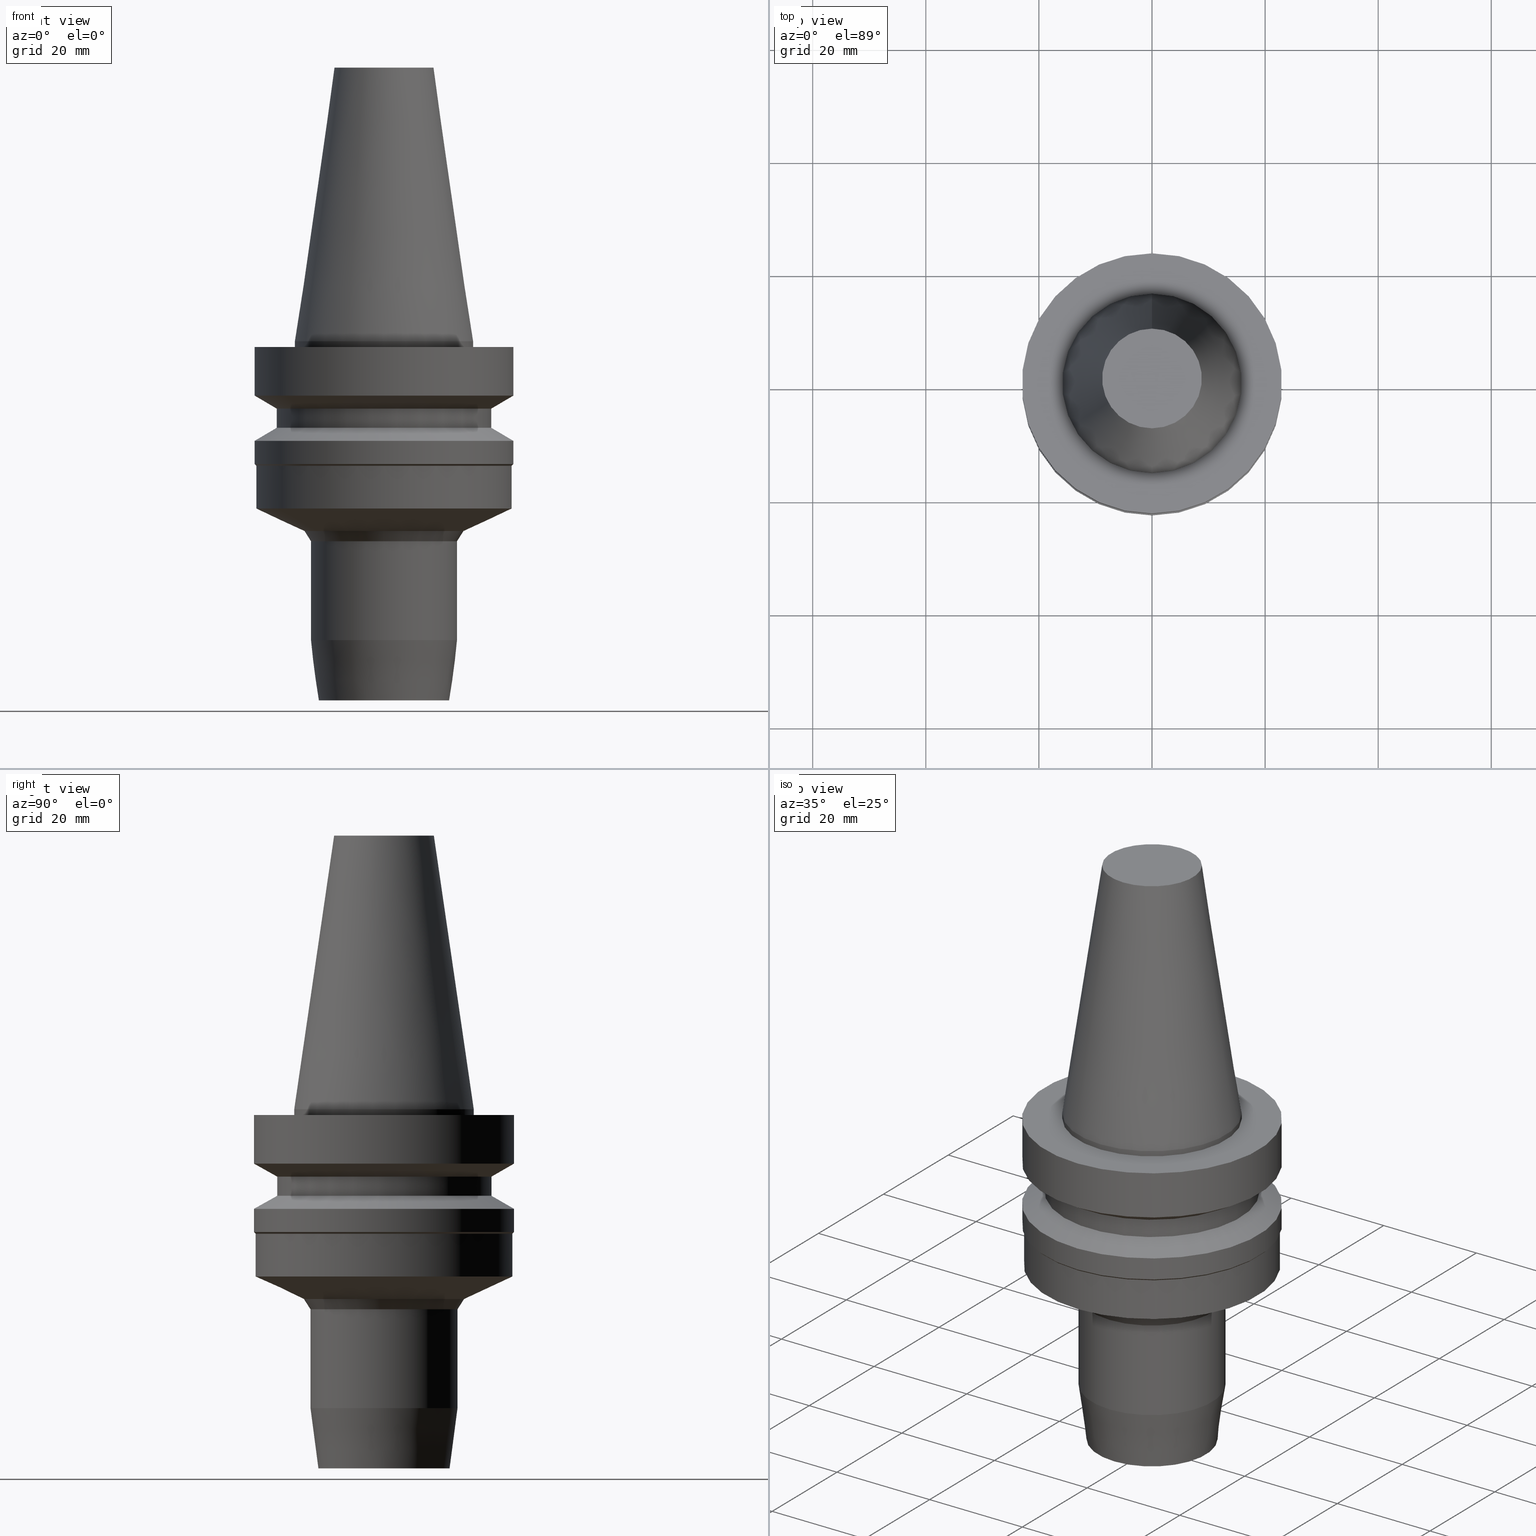
[diagram: canonical four-view strip — front | top / right | iso, engineering-drawing reading convention]
A machine part, canonical four-view strip (front | top / right | iso — engineering-drawing reading convention). The complete STEP part file that produces these views, byte-faithful:
ISO-10303-21;
HEADER;
FILE_DESCRIPTION((''),'1');
FILE_NAME('V:/90_\X2\53D65F9730C730FC30BF\X0\/00_\X2\6DE18DEF30C730FC30BF\X0\/ALL/BBT-BKUS\X2\FF76FF80FF9BFF78FF9E752852A05DE556F3\X0\201801/BBT30-HDC/BBT30-HDC.250-2.5.stp','2018-02-07T04:15:34',(''),(''),'Spatial Interop R21 SP3','Kubotek KeyCreator 2011 V10.0.2 (22737)',' ');
FILE_SCHEMA(('automotive_design'));
ENDSEC;
DATA;
#1=MECHANICAL_DESIGN_GEOMETRIC_PRESENTATION_REPRESENTATION(' ',(#10,#11,#12,#13,#14,#15,#16,#17,#18,#19,#20,#21,#22,#23,#24,#25,#26,#27,#28,#29,#30,#31,#32,#33,#34,#35,#36,#37,#38,#39,#40,#41),#6);
#2=PRODUCT_DEFINITION_CONTEXT('',#42,'design');
#3=APPLICATION_PROTOCOL_DEFINITION('INTERNATIONAL STANDARD','automotive_design',1994,#42);
#4=PRODUCT_CATEGORY_RELATIONSHIP('NONE','NONE',#43,#44);
#5=SHAPE_DEFINITION_REPRESENTATION(#45,#46);
#6= (GEOMETRIC_REPRESENTATION_CONTEXT(3)GLOBAL_UNCERTAINTY_ASSIGNED_CONTEXT((#49))GLOBAL_UNIT_ASSIGNED_CONTEXT((#51,#52,#53))REPRESENTATION_CONTEXT('NONE','WORKSPACE'));
#10=STYLED_ITEM('',(#55,#56),#57);
#11=STYLED_ITEM('',(#58),#59);
#12=STYLED_ITEM('',(#60),#61);
#13=STYLED_ITEM('',(#62,#63),#64);
#14=STYLED_ITEM('',(#65,#66),#67);
#15=STYLED_ITEM('',(#68,#69),#70);
#16=STYLED_ITEM('',(#71),#72);
#17=STYLED_ITEM('',(#73,#74),#75);
#18=STYLED_ITEM('',(#76,#77),#78);
#19=STYLED_ITEM('',(#79,#80),#81);
#20=STYLED_ITEM('',(#82,#83),#84);
#21=STYLED_ITEM('',(#85),#86);
#22=STYLED_ITEM('',(#87,#88),#89);
#23=STYLED_ITEM('',(#90,#91),#92);
#24=STYLED_ITEM('',(#93),#94);
#25=STYLED_ITEM('',(#95),#96);
#26=STYLED_ITEM('',(#97,#98),#99);
#27=STYLED_ITEM('',(#100,#101),#102);
#28=STYLED_ITEM('',(#103),#104);
#29=STYLED_ITEM('',(#105,#106),#107);
#30=STYLED_ITEM('',(#108),#109);
#31=STYLED_ITEM('',(#110,#111),#112);
#32=STYLED_ITEM('',(#113),#114);
#33=STYLED_ITEM('',(#115),#116);
#34=STYLED_ITEM('',(#117),#118);
#35=STYLED_ITEM('',(#119),#120);
#36=STYLED_ITEM('',(#121),#122);
#37=STYLED_ITEM('',(#123,#124),#125);
#38=STYLED_ITEM('',(#126),#127);
#39=STYLED_ITEM('',(#128,#129),#130);
#40=STYLED_ITEM('',(#131),#132);
#41=STYLED_ITEM('',(#133,#134),#135);
#42=APPLICATION_CONTEXT(' ');
#43=PRODUCT_CATEGORY('part','NONE');
#44=PRODUCT_RELATED_PRODUCT_CATEGORY('detail',' ',(#136));
#45=PRODUCT_DEFINITION_SHAPE('NONE','NONE',#137);
#46=ADVANCED_BREP_SHAPE_REPRESENTATION('Unnamed[1]',(#125,#138),#6);
#49=UNCERTAINTY_MEASURE_WITH_UNIT(LENGTH_MEASURE(1.0E-006),#51,'','');
#51= (CONVERSION_BASED_UNIT('MILLIMETRE',#141)LENGTH_UNIT()NAMED_UNIT(#144));
#52= (NAMED_UNIT(#146)PLANE_ANGLE_UNIT()SI_UNIT($,.RADIAN.));
#53= (NAMED_UNIT(#146)SOLID_ANGLE_UNIT()SI_UNIT($,.STERADIAN.));
#55=PRESENTATION_STYLE_ASSIGNMENT((#152));
#56=PRESENTATION_STYLE_ASSIGNMENT((#153));
#57=ADVANCED_FACE('Unnamed[1]',(#154,#155),#156,.T.);
#58=PRESENTATION_STYLE_ASSIGNMENT((#157));
#59=EDGE_CURVE('Unnamed[1]',#158,#158,#159,.T.);
#60=PRESENTATION_STYLE_ASSIGNMENT((#160));
#61=EDGE_CURVE('Unnamed[1]',#161,#161,#162,.T.);
#62=PRESENTATION_STYLE_ASSIGNMENT((#163));
#63=PRESENTATION_STYLE_ASSIGNMENT((#164));
#64=ADVANCED_FACE('Unnamed[1]',(#165,#166),#167,.T.);
#65=PRESENTATION_STYLE_ASSIGNMENT((#168));
#66=PRESENTATION_STYLE_ASSIGNMENT((#169));
#67=ADVANCED_FACE('Unnamed[1]',(#170,#171),#172,.T.);
#68=PRESENTATION_STYLE_ASSIGNMENT((#173));
#69=PRESENTATION_STYLE_ASSIGNMENT((#174));
#70=ADVANCED_FACE('Unnamed[1]',(#175,#176),#177,.T.);
#71=PRESENTATION_STYLE_ASSIGNMENT((#178));
#72=EDGE_CURVE('Unnamed[1]',#179,#179,#180,.T.);
#73=PRESENTATION_STYLE_ASSIGNMENT((#181));
#74=PRESENTATION_STYLE_ASSIGNMENT((#182));
#75=ADVANCED_FACE('Unnamed[1]',(#183,#184),#185,.T.);
#76=PRESENTATION_STYLE_ASSIGNMENT((#186));
#77=PRESENTATION_STYLE_ASSIGNMENT((#187));
#78=ADVANCED_FACE('Unnamed[1]',(#188,#189),#190,.T.);
#79=PRESENTATION_STYLE_ASSIGNMENT((#191));
#80=PRESENTATION_STYLE_ASSIGNMENT((#192));
#81=ADVANCED_FACE('Unnamed[1]',(#193),#194,.T.);
#82=PRESENTATION_STYLE_ASSIGNMENT((#195));
#83=PRESENTATION_STYLE_ASSIGNMENT((#196));
#84=ADVANCED_FACE('Unnamed[1]',(#197,#198),#199,.T.);
#85=PRESENTATION_STYLE_ASSIGNMENT((#200));
#86=EDGE_CURVE('Unnamed[1]',#201,#201,#202,.T.);
#87=PRESENTATION_STYLE_ASSIGNMENT((#203));
#88=PRESENTATION_STYLE_ASSIGNMENT((#204));
#89=ADVANCED_FACE('Unnamed[1]',(#205,#206),#207,.T.);
#90=PRESENTATION_STYLE_ASSIGNMENT((#208));
#91=PRESENTATION_STYLE_ASSIGNMENT((#209));
#92=ADVANCED_FACE('Unnamed[1]',(#210,#211),#212,.T.);
#93=PRESENTATION_STYLE_ASSIGNMENT((#213));
#94=EDGE_CURVE('Unnamed[1]',#214,#214,#215,.T.);
#95=PRESENTATION_STYLE_ASSIGNMENT((#216));
#96=EDGE_CURVE('Unnamed[1]',#217,#217,#218,.T.);
#97=PRESENTATION_STYLE_ASSIGNMENT((#219));
#98=PRESENTATION_STYLE_ASSIGNMENT((#220));
#99=ADVANCED_FACE('Unnamed[1]',(#221,#222),#223,.T.);
#100=PRESENTATION_STYLE_ASSIGNMENT((#224));
#101=PRESENTATION_STYLE_ASSIGNMENT((#225));
#102=ADVANCED_FACE('Unnamed[1]',(#226,#227),#228,.T.);
#103=PRESENTATION_STYLE_ASSIGNMENT((#229));
#104=EDGE_CURVE('Unnamed[1]',#230,#230,#231,.T.);
#105=PRESENTATION_STYLE_ASSIGNMENT((#232));
#106=PRESENTATION_STYLE_ASSIGNMENT((#233));
#107=ADVANCED_FACE('Unnamed[1]',(#234,#235),#236,.T.);
#108=PRESENTATION_STYLE_ASSIGNMENT((#237));
#109=EDGE_CURVE('Unnamed[1]',#238,#238,#239,.T.);
#110=PRESENTATION_STYLE_ASSIGNMENT((#240));
#111=PRESENTATION_STYLE_ASSIGNMENT((#241));
#112=ADVANCED_FACE('Unnamed[1]',(#242),#243,.T.);
#113=PRESENTATION_STYLE_ASSIGNMENT((#244));
#114=EDGE_CURVE('Unnamed[1]',#245,#245,#246,.T.);
#115=PRESENTATION_STYLE_ASSIGNMENT((#247));
#116=EDGE_CURVE('Unnamed[1]',#248,#248,#249,.T.);
#117=PRESENTATION_STYLE_ASSIGNMENT((#250));
#118=EDGE_CURVE('Unnamed[1]',#251,#251,#252,.T.);
#119=PRESENTATION_STYLE_ASSIGNMENT((#253));
#120=EDGE_CURVE('Unnamed[1]',#254,#254,#255,.T.);
#121=PRESENTATION_STYLE_ASSIGNMENT((#256));
#122=EDGE_CURVE('Unnamed[1]',#257,#257,#258,.T.);
#123=PRESENTATION_STYLE_ASSIGNMENT((#259));
#124=PRESENTATION_STYLE_ASSIGNMENT((#260));
#125=MANIFOLD_SOLID_BREP('Unnamed[1]',#261);
#126=PRESENTATION_STYLE_ASSIGNMENT((#262));
#127=EDGE_CURVE('Unnamed[1]',#263,#263,#264,.T.);
#128=PRESENTATION_STYLE_ASSIGNMENT((#265));
#129=PRESENTATION_STYLE_ASSIGNMENT((#266));
#130=ADVANCED_FACE('Unnamed[1]',(#267,#268),#269,.T.);
#131=PRESENTATION_STYLE_ASSIGNMENT((#270));
#132=EDGE_CURVE('Unnamed[1]',#271,#271,#272,.T.);
#133=PRESENTATION_STYLE_ASSIGNMENT((#273));
#134=PRESENTATION_STYLE_ASSIGNMENT((#274));
#135=ADVANCED_FACE('Unnamed[1]',(#275,#276),#277,.T.);
#136=PRODUCT('Unnamed[1]','Unnamed[1]','PART-Unnamed[1]-DESC',(#278));
#137=PRODUCT_DEFINITION('NONE','NONE',#279,#2);
#138=AXIS2_PLACEMENT_3D('',#280,#281,#282);
#141=LENGTH_MEASURE_WITH_UNIT(LENGTH_MEASURE(1.0),#283);
#144=DIMENSIONAL_EXPONENTS(1.0,0.0,0.0,0.0,0.0,0.0,0.0);
#146=DIMENSIONAL_EXPONENTS(0.0,0.0,0.0,0.0,0.0,0.0,0.0);
#152=SURFACE_STYLE_USAGE(.BOTH.,#284);
#153=CURVE_STYLE('',#285,POSITIVE_LENGTH_MEASURE(1000.0),#286);
#154=FACE_BOUND('',#287,.T.);
#155=FACE_BOUND('',#288,.T.);
#156=CYLINDRICAL_SURFACE('',#289,19.0);
#157=CURVE_STYLE('',#290,POSITIVE_LENGTH_MEASURE(1000.0),#291);
#158=VERTEX_POINT('',#292);
#159=CIRCLE('',#293,23.0);
#160=CURVE_STYLE('',#294,POSITIVE_LENGTH_MEASURE(1000.0),#295);
#161=VERTEX_POINT('',#296);
#162=CIRCLE('',#297,11.5958432516891);
#163=SURFACE_STYLE_USAGE(.BOTH.,#298);
#164=CURVE_STYLE('',#299,POSITIVE_LENGTH_MEASURE(1000.0),#300);
#165=FACE_BOUND('',#301,.T.);
#166=FACE_BOUND('',#302,.T.);
#167=CYLINDRICAL_SURFACE('',#303,22.7000000000012);
#168=SURFACE_STYLE_USAGE(.BOTH.,#304);
#169=CURVE_STYLE('',#305,POSITIVE_LENGTH_MEASURE(1000.0),#306);
#170=FACE_OUTER_BOUND('',#307,.T.);
#171=FACE_BOUND('',#308,.T.);
#172=PLANE('',#309);
#173=SURFACE_STYLE_USAGE(.BOTH.,#310);
#174=CURVE_STYLE('',#311,POSITIVE_LENGTH_MEASURE(1000.0),#312);
#175=FACE_BOUND('',#313,.T.);
#176=FACE_BOUND('',#314,.T.);
#177=CONICAL_SURFACE('',#315,21.0,1.04719755058881);
#178=CURVE_STYLE('',#316,POSITIVE_LENGTH_MEASURE(1000.0),#317);
#179=VERTEX_POINT('',#318);
#180=CIRCLE('',#319,23.0);
#181=SURFACE_STYLE_USAGE(.BOTH.,#320);
#182=CURVE_STYLE('',#321,POSITIVE_LENGTH_MEASURE(1000.0),#322);
#183=FACE_BOUND('',#323,.T.);
#184=FACE_BOUND('',#324,.T.);
#185=CONICAL_SURFACE('',#325,12.3457500009933,0.144815870013618);
#186=SURFACE_STYLE_USAGE(.BOTH.,#326);
#187=CURVE_STYLE('',#327,POSITIVE_LENGTH_MEASURE(1000.0),#328);
#188=FACE_BOUND('',#329,.T.);
#189=FACE_BOUND('',#330,.T.);
#190=CONICAL_SURFACE('',#331,18.4273817382593,1.13446401379631);
#191=SURFACE_STYLE_USAGE(.BOTH.,#332);
#192=CURVE_STYLE('',#333,POSITIVE_LENGTH_MEASURE(1000.0),#334);
#193=FACE_OUTER_BOUND('',#335,.T.);
#194=PLANE('',#336);
#195=SURFACE_STYLE_USAGE(.BOTH.,#337);
#196=CURVE_STYLE('',#338,POSITIVE_LENGTH_MEASURE(1000.0),#339);
#197=FACE_BOUND('',#340,.T.);
#198=FACE_BOUND('',#341,.T.);
#199=CYLINDRICAL_SURFACE('',#342,23.0);
#200=CURVE_STYLE('',#343,POSITIVE_LENGTH_MEASURE(1000.0),#344);
#201=VERTEX_POINT('',#345);
#202=CIRCLE('',#346,14.1547634765173);
#203=SURFACE_STYLE_USAGE(.BOTH.,#347);
#204=CURVE_STYLE('',#348,POSITIVE_LENGTH_MEASURE(1000.0),#349);
#205=FACE_BOUND('',#350,.T.);
#206=FACE_BOUND('',#351,.T.);
#207=CONICAL_SURFACE('',#352,21.0,1.04719755058882);
#208=SURFACE_STYLE_USAGE(.BOTH.,#353);
#209=CURVE_STYLE('',#354,POSITIVE_LENGTH_MEASURE(1000.0),#355);
#210=FACE_BOUND('',#356,.T.);
#211=FACE_BOUND('',#357,.T.);
#212=CONICAL_SURFACE('',#358,13.5773817382587,0.567232006898159);
#213=CURVE_STYLE('',#359,POSITIVE_LENGTH_MEASURE(1000.0),#360);
#214=VERTEX_POINT('',#361);
#215=CIRCLE('',#362,22.7000000000012);
#216=CURVE_STYLE('',#363,POSITIVE_LENGTH_MEASURE(1000.0),#364);
#217=VERTEX_POINT('',#365);
#218=CIRCLE('',#366,23.0);
#219=SURFACE_STYLE_USAGE(.BOTH.,#367);
#220=CURVE_STYLE('',#368,POSITIVE_LENGTH_MEASURE(1000.0),#369);
#221=FACE_BOUND('',#370,.T.);
#222=FACE_BOUND('',#371,.T.);
#223=CYLINDRICAL_SURFACE('',#372,15.875);
#224=SURFACE_STYLE_USAGE(.BOTH.,#373);
#225=CURVE_STYLE('',#374,POSITIVE_LENGTH_MEASURE(1000.0),#375);
#226=FACE_BOUND('',#376,.T.);
#227=FACE_BOUND('',#377,.T.);
#228=CYLINDRICAL_SURFACE('',#378,23.0);
#229=CURVE_STYLE('',#379,POSITIVE_LENGTH_MEASURE(1000.0),#380);
#230=VERTEX_POINT('',#381);
#231=CIRCLE('',#382,19.0);
#232=SURFACE_STYLE_USAGE(.BOTH.,#383);
#233=CURVE_STYLE('',#384,POSITIVE_LENGTH_MEASURE(1000.0),#385);
#234=FACE_BOUND('',#386,.T.);
#235=FACE_BOUND('',#387,.T.);
#236=CYLINDRICAL_SURFACE('',#388,12.9999999999999);
#237=CURVE_STYLE('',#389,POSITIVE_LENGTH_MEASURE(1000.0),#390);
#238=VERTEX_POINT('',#391);
#239=CIRCLE('',#392,15.875);
#240=SURFACE_STYLE_USAGE(.BOTH.,#393);
#241=CURVE_STYLE('',#394,POSITIVE_LENGTH_MEASURE(1000.0),#395);
#242=FACE_OUTER_BOUND('',#396,.T.);
#243=PLANE('',#397);
#244=CURVE_STYLE('',#398,POSITIVE_LENGTH_MEASURE(1000.0),#399);
#245=VERTEX_POINT('',#400);
#246=CIRCLE('',#401,8.81650000198669);
#247=CURVE_STYLE('',#402,POSITIVE_LENGTH_MEASURE(1000.0),#403);
#248=VERTEX_POINT('',#404);
#249=CIRCLE('',#405,23.0);
#250=CURVE_STYLE('',#406,POSITIVE_LENGTH_MEASURE(1000.0),#407);
#251=VERTEX_POINT('',#408);
#252=CIRCLE('',#409,13.0);
#253=CURVE_STYLE('',#410,POSITIVE_LENGTH_MEASURE(1000.0),#411);
#254=VERTEX_POINT('',#412);
#255=CIRCLE('',#413,22.7000000000012);
#256=CURVE_STYLE('',#414,POSITIVE_LENGTH_MEASURE(1000.0),#415);
#257=VERTEX_POINT('',#416);
#258=CIRCLE('',#417,15.875);
#259=SURFACE_STYLE_USAGE(.BOTH.,#418);
#260=CURVE_STYLE('',#419,POSITIVE_LENGTH_MEASURE(1000.0),#420);
#261=CLOSED_SHELL('',(#81,#75,#99,#67,#84,#70,#57,#89,#102,#135,#64,#78,#92,#107,#130,#112));
#262=CURVE_STYLE('',#421,POSITIVE_LENGTH_MEASURE(1000.0),#422);
#263=VERTEX_POINT('',#423);
#264=CIRCLE('',#424,19.0);
#265=SURFACE_STYLE_USAGE(.BOTH.,#425);
#266=CURVE_STYLE('',#426,POSITIVE_LENGTH_MEASURE(1000.0),#427);
#267=FACE_BOUND('',#428,.T.);
#268=FACE_BOUND('',#429,.T.);
#269=CONICAL_SURFACE('',#430,12.2979216258445,0.130899693899576);
#270=CURVE_STYLE('',#431,POSITIVE_LENGTH_MEASURE(1000.0),#432);
#271=VERTEX_POINT('',#433);
#272=CIRCLE('',#434,12.9999999999999);
#273=SURFACE_STYLE_USAGE(.BOTH.,#435);
#274=CURVE_STYLE('',#436,POSITIVE_LENGTH_MEASURE(1000.0),#437);
#275=FACE_BOUND('',#438,.T.);
#276=FACE_BOUND('',#439,.T.);
#277=CONICAL_SURFACE('',#440,22.8500000000006,0.785398163397496);
#278=PRODUCT_CONTEXT('',#42,'mechanical');
#279=PRODUCT_DEFINITION_FORMATION_WITH_SPECIFIED_SOURCE(' ','NONE',#136,.NOT_KNOWN.);
#280=CARTESIAN_POINT('',(0.0,0.0,0.0));
#281=DIRECTION('',(0.0,0.0,1.0));
#282=DIRECTION('',(1.0,0.0,0.0));
#283= (NAMED_UNIT(#144)LENGTH_UNIT()SI_UNIT(.MILLI.,.METRE.));
#284=SURFACE_SIDE_STYLE('',(#442));
#285=DRAUGHTING_PRE_DEFINED_CURVE_FONT('continuous');
#286=COLOUR_RGB('',0.0,1.0,0.0);
#287=EDGE_LOOP('',(#443));
#288=EDGE_LOOP('',(#444));
#289=AXIS2_PLACEMENT_3D('',#445,#446,#447);
#290=DRAUGHTING_PRE_DEFINED_CURVE_FONT('continuous');
#291=COLOUR_RGB('',0.0,1.0,0.0);
#292=CARTESIAN_POINT('',(5.87830463590729E-016,23.0,-9.59999999999999));
#293=AXIS2_PLACEMENT_3D('',#448,#449,#450);
#294=DRAUGHTING_PRE_DEFINED_CURVE_FONT('continuous');
#295=COLOUR_RGB('',0.0,1.0,0.0);
#296=CARTESIAN_POINT('',(3.88825358729313E-015,11.5958432516891,-63.5000000000046));
#297=AXIS2_PLACEMENT_3D('',#451,#452,#453);
#298=SURFACE_SIDE_STYLE('',(#454));
#299=DRAUGHTING_PRE_DEFINED_CURVE_FONT('continuous');
#300=COLOUR_RGB('',0.0,1.0,0.0);
#301=EDGE_LOOP('',(#455));
#302=EDGE_LOOP('',(#456));
#303=AXIS2_PLACEMENT_3D('',#457,#458,#459);
#304=SURFACE_SIDE_STYLE('',(#460));
#305=DRAUGHTING_PRE_DEFINED_CURVE_FONT('continuous');
#306=COLOUR_RGB('',0.0,1.0,0.0);
#307=EDGE_LOOP('',(#461));
#308=EDGE_LOOP('',(#462));
#309=AXIS2_PLACEMENT_3D('',#463,#464,#465);
#310=SURFACE_SIDE_STYLE('',(#466));
#311=DRAUGHTING_PRE_DEFINED_CURVE_FONT('continuous');
#312=COLOUR_RGB('',0.0,1.0,0.0);
#313=EDGE_LOOP('',(#467));
#314=EDGE_LOOP('',(#468));
#315=AXIS2_PLACEMENT_3D('',#469,#470,#471);
#316=DRAUGHTING_PRE_DEFINED_CURVE_FONT('continuous');
#317=COLOUR_RGB('',0.0,1.0,0.0);
#318=CARTESIAN_POINT('',(1.07768918324967E-015,23.0,-17.6));
#319=AXIS2_PLACEMENT_3D('',#472,#473,#474);
#320=SURFACE_SIDE_STYLE('',(#475));
#321=DRAUGHTING_PRE_DEFINED_CURVE_FONT('continuous');
#322=COLOUR_RGB('',0.0,1.0,0.0);
#323=EDGE_LOOP('',(#476));
#324=EDGE_LOOP('',(#477));
#325=AXIS2_PLACEMENT_3D('',#478,#479,#480);
#326=SURFACE_SIDE_STYLE('',(#481));
#327=DRAUGHTING_PRE_DEFINED_CURVE_FONT('continuous');
#328=COLOUR_RGB('',0.0,1.0,0.0);
#329=EDGE_LOOP('',(#482));
#330=EDGE_LOOP('',(#483));
#331=AXIS2_PLACEMENT_3D('',#484,#485,#486);
#332=SURFACE_SIDE_STYLE('',(#487));
#333=DRAUGHTING_PRE_DEFINED_CURVE_FONT('continuous');
#334=COLOUR_RGB('',0.0,1.0,0.0);
#335=EDGE_LOOP('',(#488));
#336=AXIS2_PLACEMENT_3D('',#489,#490,#491);
#337=SURFACE_SIDE_STYLE('',(#492));
#338=DRAUGHTING_PRE_DEFINED_CURVE_FONT('continuous');
#339=COLOUR_RGB('',0.0,1.0,0.0);
#340=EDGE_LOOP('',(#493));
#341=EDGE_LOOP('',(#494));
#342=AXIS2_PLACEMENT_3D('',#495,#496,#497);
#343=DRAUGHTING_PRE_DEFINED_CURVE_FONT('continuous');
#344=COLOUR_RGB('',0.0,1.0,0.0);
#345=CARTESIAN_POINT('',(2.05429212232342E-015,14.1547634765173,-33.5491363510475));
#346=AXIS2_PLACEMENT_3D('',#498,#499,#500);
#347=SURFACE_SIDE_STYLE('',(#501));
#348=DRAUGHTING_PRE_DEFINED_CURVE_FONT('continuous');
#349=COLOUR_RGB('',0.0,1.0,0.0);
#350=EDGE_LOOP('',(#502));
#351=EDGE_LOOP('',(#503));
#352=AXIS2_PLACEMENT_3D('',#504,#505,#506);
#353=SURFACE_SIDE_STYLE('',(#507));
#354=DRAUGHTING_PRE_DEFINED_CURVE_FONT('continuous');
#355=COLOUR_RGB('',0.0,1.0,0.0);
#356=EDGE_LOOP('',(#508));
#357=EDGE_LOOP('',(#509));
#358=AXIS2_PLACEMENT_3D('',#510,#511,#512);
#359=DRAUGHTING_PRE_DEFINED_CURVE_FONT('continuous');
#360=COLOUR_RGB('',0.0,1.0,0.0);
#361=CARTESIAN_POINT('',(1.81029905201999E-015,22.7000000000012,-29.5644271194012));
#362=AXIS2_PLACEMENT_3D('',#513,#514,#515);
#363=DRAUGHTING_PRE_DEFINED_CURVE_FONT('continuous');
#364=COLOUR_RGB('',0.0,1.0,0.0);
#365=CARTESIAN_POINT('',(1.32874177707509E-015,23.0,-21.7000000000035));
#366=AXIS2_PLACEMENT_3D('',#516,#517,#518);
#367=SURFACE_SIDE_STYLE('',(#519));
#368=DRAUGHTING_PRE_DEFINED_CURVE_FONT('continuous');
#369=COLOUR_RGB('',0.0,1.0,0.0);
#370=EDGE_LOOP('',(#520));
#371=EDGE_LOOP('',(#521));
#372=AXIS2_PLACEMENT_3D('',#522,#523,#524);
#373=SURFACE_SIDE_STYLE('',(#525));
#374=DRAUGHTING_PRE_DEFINED_CURVE_FONT('continuous');
#375=COLOUR_RGB('',0.0,1.0,0.0);
#376=EDGE_LOOP('',(#526));
#377=EDGE_LOOP('',(#527));
#378=AXIS2_PLACEMENT_3D('',#528,#529,#530);
#379=DRAUGHTING_PRE_DEFINED_CURVE_FONT('continuous');
#380=COLOUR_RGB('',0.0,1.0,0.0);
#381=CARTESIAN_POINT('',(7.29240495619202E-016,19.0,-11.90940108));
#382=AXIS2_PLACEMENT_3D('',#531,#532,#533);
#383=SURFACE_SIDE_STYLE('',(#534));
#384=DRAUGHTING_PRE_DEFINED_CURVE_FONT('continuous');
#385=COLOUR_RGB('',0.0,1.0,0.0);
#386=EDGE_LOOP('',(#535));
#387=EDGE_LOOP('',(#536));
#388=AXIS2_PLACEMENT_3D('',#537,#538,#539);
#389=DRAUGHTING_PRE_DEFINED_CURVE_FONT('continuous');
#390=COLOUR_RGB('',0.0,1.0,0.0);
#391=CARTESIAN_POINT('',(6.12323399573675E-017,15.875,-0.999999999999998));
#392=AXIS2_PLACEMENT_3D('',#540,#541,#542);
#393=SURFACE_SIDE_STYLE('',(#543));
#394=DRAUGHTING_PRE_DEFINED_CURVE_FONT('continuous');
#395=COLOUR_RGB('',0.0,1.0,0.0);
#396=EDGE_LOOP('',(#544));
#397=AXIS2_PLACEMENT_3D('',#545,#546,#547);
#398=DRAUGHTING_PRE_DEFINED_CURVE_FONT('continuous');
#399=COLOUR_RGB('',0.0,1.0,0.0);
#400=CARTESIAN_POINT('',(-2.96364525393659E-015,8.81650000198669,48.4));
#401=AXIS2_PLACEMENT_3D('',#548,#549,#550);
#402=DRAUGHTING_PRE_DEFINED_CURVE_FONT('continuous');
#403=COLOUR_RGB('',0.0,1.0,0.0);
#404=CARTESIAN_POINT('',(6.12323399573674E-017,23.0,-0.999999999999997));
#405=AXIS2_PLACEMENT_3D('',#551,#552,#553);
#406=DRAUGHTING_PRE_DEFINED_CURVE_FONT('continuous');
#407=COLOUR_RGB('',0.0,1.0,0.0);
#408=CARTESIAN_POINT('',(2.16528281536698E-015,13.0,-35.3617519251189));
#409=AXIS2_PLACEMENT_3D('',#554,#555,#556);
#410=DRAUGHTING_PRE_DEFINED_CURVE_FONT('continuous');
#411=COLOUR_RGB('',0.0,1.0,0.0);
#412=CARTESIAN_POINT('',(1.34711147906222E-015,22.7000000000012,-22.0000000000022));
#413=AXIS2_PLACEMENT_3D('',#557,#558,#559);
#414=DRAUGHTING_PRE_DEFINED_CURVE_FONT('continuous');
#415=COLOUR_RGB('',0.0,1.0,0.0);
#416=CARTESIAN_POINT('',(-1.95674482349743E-031,15.875,1.94412679364642E-015));
#417=AXIS2_PLACEMENT_3D('',#560,#561,#562);
#418=SURFACE_SIDE_STYLE('',(#563));
#419=DRAUGHTING_PRE_DEFINED_CURVE_FONT('continuous');
#420=COLOUR_RGB('',0.0,1.0,0.0);
#421=DRAUGHTING_PRE_DEFINED_CURVE_FONT('continuous');
#422=COLOUR_RGB('',0.0,1.0,0.0);
#423=CARTESIAN_POINT('',(9.36279151221199E-016,19.0,-15.29059892));
#424=AXIS2_PLACEMENT_3D('',#564,#565,#566);
#425=SURFACE_SIDE_STYLE('',(#567));
#426=DRAUGHTING_PRE_DEFINED_CURVE_FONT('continuous');
#427=COLOUR_RGB('',0.0,1.0,0.0);
#428=EDGE_LOOP('',(#568));
#429=EDGE_LOOP('',(#569));
#430=AXIS2_PLACEMENT_3D('',#570,#571,#572);
#431=DRAUGHTING_PRE_DEFINED_CURVE_FONT('continuous');
#432=COLOUR_RGB('',0.0,1.0,0.0);
#433=CARTESIAN_POINT('',(3.23517214226456E-015,12.9999999999999,-52.8343706041123));
#434=AXIS2_PLACEMENT_3D('',#573,#574,#575);
#435=SURFACE_SIDE_STYLE('',(#576));
#436=DRAUGHTING_PRE_DEFINED_CURVE_FONT('continuous');
#437=COLOUR_RGB('',0.0,1.0,0.0);
#438=EDGE_LOOP('',(#577));
#439=EDGE_LOOP('',(#578));
#440=AXIS2_PLACEMENT_3D('',#579,#580,#581);
#442=SURFACE_STYLE_FILL_AREA(#582);
#443=ORIENTED_EDGE('',*,*,#127,.F.);
#444=ORIENTED_EDGE('',*,*,#104,.T.);
#445=CARTESIAN_POINT('',(8.32759823420201E-016,1.6655196468404E-015,-13.6));
#446=DIRECTION('',(6.12323399573677E-017,1.2246467991475E-016,-1.0));
#447=DIRECTION('',(-1.23259516440783E-032,1.0,1.2246467991475E-016));
#448=CARTESIAN_POINT('',(5.87830463590729E-016,1.17566092718146E-015,-9.59999999999999));
#449=DIRECTION('',(6.12323399573677E-017,1.22464679914716E-016,-1.0));
#450=DIRECTION('',(-1.23259516440783E-032,1.0,1.22464679914716E-016));
#451=CARTESIAN_POINT('',(3.88825358729313E-015,7.77650717458626E-015,-63.5000000000046));
#452=DIRECTION('',(6.12323399573677E-017,1.22464679914734E-016,-1.0));
#453=DIRECTION('',(-1.23259516440783E-032,1.0,1.22464679914734E-016));
#454=SURFACE_STYLE_FILL_AREA(#583);
#455=ORIENTED_EDGE('',*,*,#94,.F.);
#456=ORIENTED_EDGE('',*,*,#120,.T.);
#457=CARTESIAN_POINT('',(1.57870526554111E-015,3.15741053108222E-015,-25.7822135597017));
#458=DIRECTION('',(6.12323399573677E-017,1.2246467991476E-016,-1.0));
#459=DIRECTION('',(-1.232595164408E-032,1.0,1.2246467991476E-016));
#460=SURFACE_STYLE_FILL_AREA(#584);
#461=ORIENTED_EDGE('',*,*,#116,.F.);
#462=ORIENTED_EDGE('',*,*,#109,.T.);
#463=CARTESIAN_POINT('',(6.12323399573674E-017,19.4375,-0.999999999999998));
#464=DIRECTION('',(-6.12323399573677E-017,-1.22464679914735E-016,1.0));
#465=DIRECTION('',(1.23259516440783E-032,-1.0,-1.22464679914735E-016));
#466=SURFACE_STYLE_FILL_AREA(#585);
#467=ORIENTED_EDGE('',*,*,#104,.F.);
#468=ORIENTED_EDGE('',*,*,#59,.T.);
#469=CARTESIAN_POINT('',(6.58535479604966E-016,1.31707095920993E-015,-10.75470054));
#470=DIRECTION('',(-6.12323399573677E-017,-1.2246467991477E-016,1.0));
#471=DIRECTION('',(-1.23259516440783E-032,1.0,1.2246467991477E-016));
#472=CARTESIAN_POINT('',(1.07768918324967E-015,2.15537836649934E-015,-17.6));
#473=DIRECTION('',(6.12323399573677E-017,1.22464679914716E-016,-1.0));
#474=DIRECTION('',(-1.23259516440783E-032,1.0,1.22464679914716E-016));
#475=SURFACE_STYLE_FILL_AREA(#586);
#476=ORIENTED_EDGE('',*,*,#122,.F.);
#477=ORIENTED_EDGE('',*,*,#114,.T.);
#478=CARTESIAN_POINT('',(-1.4818226269683E-015,-2.96364525393659E-015,24.2));
#479=DIRECTION('',(6.12323399573677E-017,1.22464679914765E-016,-1.0));
#480=DIRECTION('',(-1.23259516440785E-032,1.0,1.22464679914765E-016));
#481=SURFACE_STYLE_FILL_AREA(#587);
#482=ORIENTED_EDGE('',*,*,#86,.F.);
#483=ORIENTED_EDGE('',*,*,#94,.T.);
#484=CARTESIAN_POINT('',(1.93229558717171E-015,3.86459117434342E-015,-31.5567817352244));
#485=DIRECTION('',(-6.12323399573677E-017,-1.22464679914763E-016,1.0));
#486=DIRECTION('',(-1.23259516440764E-032,1.0,1.22464679914763E-016));
#487=SURFACE_STYLE_FILL_AREA(#588);
#488=ORIENTED_EDGE('',*,*,#114,.F.);
#489=CARTESIAN_POINT('',(-2.96364525393659E-015,4.40825000099334,48.4));
#490=DIRECTION('',(-6.12323399573677E-017,-1.22464679914735E-016,1.0));
#491=DIRECTION('',(1.23259516440783E-032,-1.0,-1.22464679914735E-016));
#492=SURFACE_STYLE_FILL_AREA(#589);
#493=ORIENTED_EDGE('',*,*,#59,.F.);
#494=ORIENTED_EDGE('',*,*,#116,.T.);
#495=CARTESIAN_POINT('',(3.24531401774048E-016,6.49062803548097E-016,-5.3));
#496=DIRECTION('',(6.12323399573677E-017,1.22464679914716E-016,-1.0));
#497=DIRECTION('',(-1.23259516440783E-032,1.0,1.22464679914716E-016));
#498=CARTESIAN_POINT('',(2.05429212232342E-015,4.10858424464685E-015,-33.5491363510475));
#499=DIRECTION('',(6.12323399573677E-017,1.22464679914711E-016,-1.0));
#500=DIRECTION('',(-1.23259516440768E-032,1.0,1.22464679914711E-016));
#501=SURFACE_STYLE_FILL_AREA(#590);
#502=ORIENTED_EDGE('',*,*,#72,.F.);
#503=ORIENTED_EDGE('',*,*,#127,.T.);
#504=CARTESIAN_POINT('',(1.00698416723543E-015,2.01396833447087E-015,-16.44529946));
#505=DIRECTION('',(6.12323399573677E-017,1.2246467991477E-016,-1.0));
#506=DIRECTION('',(-1.23259516440783E-032,1.0,1.2246467991477E-016));
#507=SURFACE_STYLE_FILL_AREA(#591);
#508=ORIENTED_EDGE('',*,*,#118,.F.);
#509=ORIENTED_EDGE('',*,*,#86,.T.);
#510=CARTESIAN_POINT('',(2.1097874688452E-015,4.2195749376904E-015,-34.4554441380832));
#511=DIRECTION('',(-6.12323399573677E-017,-1.22464679914712E-016,1.0));
#512=DIRECTION('',(-1.23259516440776E-032,1.0,1.22464679914712E-016));
#513=CARTESIAN_POINT('',(1.81029905201999E-015,3.62059810403999E-015,-29.5644271194012));
#514=DIRECTION('',(6.12323399573677E-017,1.2246467991476E-016,-1.0));
#515=DIRECTION('',(-1.232595164408E-032,1.0,1.2246467991476E-016));
#516=CARTESIAN_POINT('',(1.32874177707509E-015,2.65748355415018E-015,-21.7000000000035));
#517=DIRECTION('',(6.12323399573677E-017,1.22464679914716E-016,-1.0));
#518=DIRECTION('',(-1.23259516440783E-032,1.0,1.22464679914716E-016));
#519=SURFACE_STYLE_FILL_AREA(#592);
#520=ORIENTED_EDGE('',*,*,#109,.F.);
#521=ORIENTED_EDGE('',*,*,#122,.T.);
#522=CARTESIAN_POINT('',(3.06161699786838E-017,6.12323399573676E-017,-0.5));
#523=DIRECTION('',(6.12323399573677E-017,1.22464679914714E-016,-1.0));
#524=DIRECTION('',(-1.23259516440783E-032,1.0,1.22464679914714E-016));
#525=SURFACE_STYLE_FILL_AREA(#593);
#526=ORIENTED_EDGE('',*,*,#96,.F.);
#527=ORIENTED_EDGE('',*,*,#72,.T.);
#528=CARTESIAN_POINT('',(1.20321548016238E-015,2.40643096032476E-015,-19.6500000000017));
#529=DIRECTION('',(6.12323399573677E-017,1.22464679914716E-016,-1.0));
#530=DIRECTION('',(-1.23259516440783E-032,1.0,1.22464679914716E-016));
#531=CARTESIAN_POINT('',(7.29240495619202E-016,1.4584809912384E-015,-11.90940108));
#532=DIRECTION('',(6.12323399573677E-017,1.2246467991475E-016,-1.0));
#533=DIRECTION('',(-1.23259516440783E-032,1.0,1.2246467991475E-016));
#534=SURFACE_STYLE_FILL_AREA(#594);
#535=ORIENTED_EDGE('',*,*,#132,.F.);
#536=ORIENTED_EDGE('',*,*,#118,.T.);
#537=CARTESIAN_POINT('',(2.70022747881577E-015,5.40045495763154E-015,-44.0980612646156));
#538=DIRECTION('',(6.12323399573677E-017,1.22464679914714E-016,-1.0));
#539=DIRECTION('',(-1.23259516440784E-032,1.0,1.22464679914714E-016));
#540=CARTESIAN_POINT('',(6.12323399573677E-017,1.22464679914735E-016,-1.0));
#541=DIRECTION('',(6.12323399573677E-017,1.22464679914714E-016,-1.0));
#542=DIRECTION('',(-1.23259516440783E-032,1.0,1.22464679914714E-016));
#543=SURFACE_STYLE_FILL_AREA(#595);
#544=ORIENTED_EDGE('',*,*,#61,.T.);
#545=CARTESIAN_POINT('',(3.88825358729306E-015,5.79792162584455,-63.5000000000034));
#546=DIRECTION('',(6.12323399573677E-017,-2.08827473358357E-013,-1.0));
#547=DIRECTION('',(1.27821676883863E-029,1.0,-2.08827473358357E-013));
#548=CARTESIAN_POINT('',(-2.96364525393659E-015,-5.92729050787319E-015,48.4));
#549=DIRECTION('',(6.12323399573677E-017,1.22464679914764E-016,-1.0));
#550=DIRECTION('',(-1.23259516440789E-032,1.0,1.22464679914764E-016));
#551=CARTESIAN_POINT('',(6.12323399573677E-017,1.22464679914735E-016,-1.0));
#552=DIRECTION('',(6.12323399573677E-017,1.22464679914716E-016,-1.0));
#553=DIRECTION('',(-1.23259516440783E-032,1.0,1.22464679914716E-016));
#554=CARTESIAN_POINT('',(2.16528281536698E-015,4.33056563073396E-015,-35.3617519251189));
#555=DIRECTION('',(6.12323399573677E-017,1.22464679914714E-016,-1.0));
#556=DIRECTION('',(-1.23259516440783E-032,1.0,1.22464679914714E-016));
#557=CARTESIAN_POINT('',(1.34711147906222E-015,2.69422295812445E-015,-22.0000000000022));
#558=DIRECTION('',(6.12323399573677E-017,1.2246467991476E-016,-1.0));
#559=DIRECTION('',(-1.232595164408E-032,1.0,1.2246467991476E-016));
#560=CARTESIAN_POINT('',(0.0,0.0,0.0));
#561=DIRECTION('',(6.12323399573677E-017,1.22464679914714E-016,-1.0));
#562=DIRECTION('',(-1.23259516440783E-032,1.0,1.22464679914714E-016));
#563=SURFACE_STYLE_FILL_AREA(#596);
#564=CARTESIAN_POINT('',(9.36279151221199E-016,1.8725583024424E-015,-15.29059892));
#565=DIRECTION('',(6.12323399573677E-017,1.2246467991475E-016,-1.0));
#566=DIRECTION('',(-1.23259516440783E-032,1.0,1.2246467991475E-016));
#567=SURFACE_STYLE_FILL_AREA(#597);
#568=ORIENTED_EDGE('',*,*,#61,.F.);
#569=ORIENTED_EDGE('',*,*,#132,.T.);
#570=CARTESIAN_POINT('',(3.56171286477884E-015,7.12342572955769E-015,-58.1671853020585));
#571=DIRECTION('',(-6.12323399573676E-017,-1.22464679914757E-016,1.0));
#572=DIRECTION('',(-1.23259516440765E-032,1.0,1.22464679914757E-016));
#573=CARTESIAN_POINT('',(3.23517214226456E-015,6.47034428452911E-015,-52.8343706041123));
#574=DIRECTION('',(6.12323399573676E-017,1.22464679914715E-016,-1.0));
#575=DIRECTION('',(-1.23259516440784E-032,1.0,1.22464679914715E-016));
#576=SURFACE_STYLE_FILL_AREA(#598);
#577=ORIENTED_EDGE('',*,*,#120,.F.);
#578=ORIENTED_EDGE('',*,*,#96,.T.);
#579=CARTESIAN_POINT('',(1.33792662806866E-015,2.67585325613731E-015,-21.8500000000028));
#580=DIRECTION('',(-6.12323399573677E-017,-1.22464679914703E-016,1.0));
#581=DIRECTION('',(-1.23259516440772E-032,1.0,1.22464679914703E-016));
#582=FILL_AREA_STYLE('',(#599));
#583=FILL_AREA_STYLE('',(#600));
#584=FILL_AREA_STYLE('',(#601));
#585=FILL_AREA_STYLE('',(#602));
#586=FILL_AREA_STYLE('',(#603));
#587=FILL_AREA_STYLE('',(#604));
#588=FILL_AREA_STYLE('',(#605));
#589=FILL_AREA_STYLE('',(#606));
#590=FILL_AREA_STYLE('',(#607));
#591=FILL_AREA_STYLE('',(#608));
#592=FILL_AREA_STYLE('',(#609));
#593=FILL_AREA_STYLE('',(#610));
#594=FILL_AREA_STYLE('',(#611));
#595=FILL_AREA_STYLE('',(#612));
#596=FILL_AREA_STYLE('',(#613));
#597=FILL_AREA_STYLE('',(#614));
#598=FILL_AREA_STYLE('',(#615));
#599=FILL_AREA_STYLE_COLOUR('',#616);
#600=FILL_AREA_STYLE_COLOUR('',#617);
#601=FILL_AREA_STYLE_COLOUR('',#618);
#602=FILL_AREA_STYLE_COLOUR('',#619);
#603=FILL_AREA_STYLE_COLOUR('',#620);
#604=FILL_AREA_STYLE_COLOUR('',#621);
#605=FILL_AREA_STYLE_COLOUR('',#622);
#606=FILL_AREA_STYLE_COLOUR('',#623);
#607=FILL_AREA_STYLE_COLOUR('',#624);
#608=FILL_AREA_STYLE_COLOUR('',#625);
#609=FILL_AREA_STYLE_COLOUR('',#626);
#610=FILL_AREA_STYLE_COLOUR('',#627);
#611=FILL_AREA_STYLE_COLOUR('',#628);
#612=FILL_AREA_STYLE_COLOUR('',#629);
#613=FILL_AREA_STYLE_COLOUR('',#630);
#614=FILL_AREA_STYLE_COLOUR('',#631);
#615=FILL_AREA_STYLE_COLOUR('',#632);
#616=COLOUR_RGB('',0.0,1.0,0.0);
#617=COLOUR_RGB('',0.0,1.0,0.0);
#618=COLOUR_RGB('',0.0,1.0,0.0);
#619=COLOUR_RGB('',0.0,1.0,0.0);
#620=COLOUR_RGB('',0.0,1.0,0.0);
#621=COLOUR_RGB('',0.0,1.0,0.0);
#622=COLOUR_RGB('',0.0,1.0,0.0);
#623=COLOUR_RGB('',0.0,1.0,0.0);
#624=COLOUR_RGB('',0.0,1.0,0.0);
#625=COLOUR_RGB('',0.0,1.0,0.0);
#626=COLOUR_RGB('',0.0,1.0,0.0);
#627=COLOUR_RGB('',0.0,1.0,0.0);
#628=COLOUR_RGB('',0.0,1.0,0.0);
#629=COLOUR_RGB('',0.0,1.0,0.0);
#630=COLOUR_RGB('',0.0,1.0,0.0);
#631=COLOUR_RGB('',0.0,1.0,0.0);
#632=COLOUR_RGB('',0.0,1.0,0.0);
ENDSEC;
END-ISO-10303-21;
